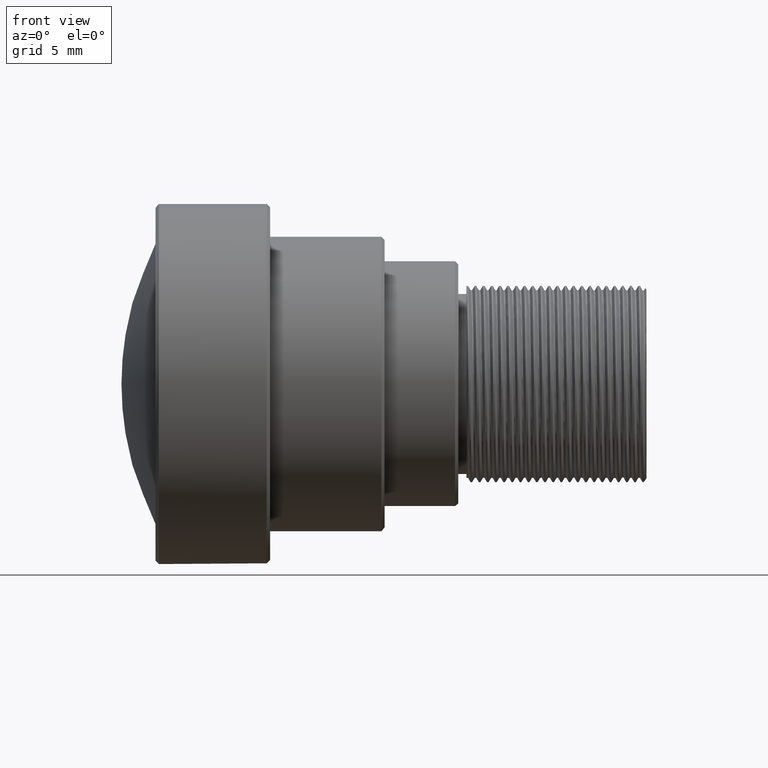
[diagram: clean part render]
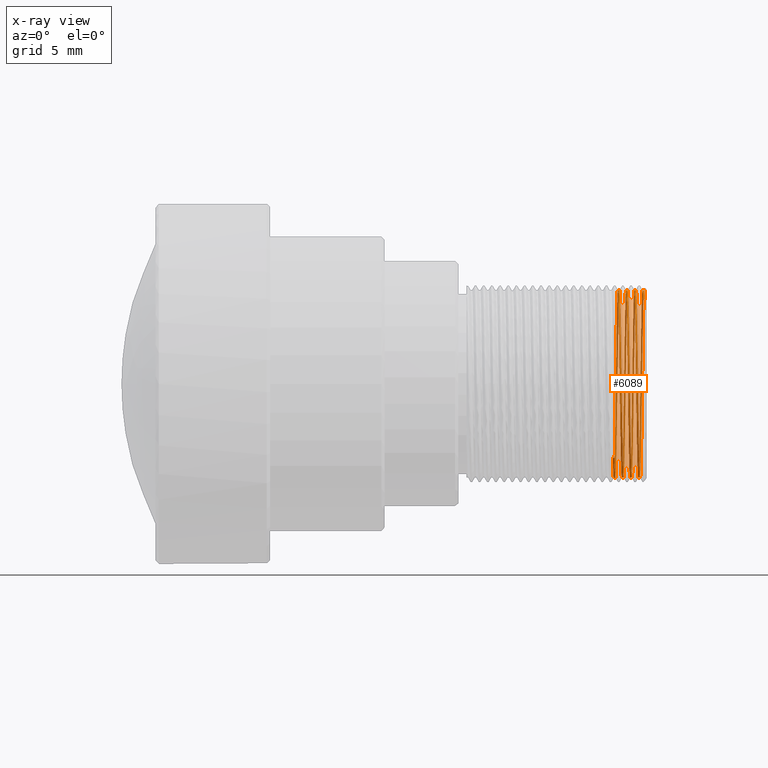
[diagram: x-ray — body ghosted, one internal face saturated and labeled with its STEP entity id]
A machine part, front view, then the same camera in x-ray: the body is ghosted and one INTERNAL B-rep face — a face not visible from any outside direction — is saturated and labeled: STEP entity #6089.
In plain terms, the highlighted face is a freeform B-spline surface patch.
Its self-contained STEP definition (entity closure, byte-faithful):
#68 = CARTESIAN_POINT ( 'NONE',  ( -0.2983402267784215911, 3.262020544383000598, 4.888248852243999742 ) ) ;
#73 = CARTESIAN_POINT ( 'NONE',  ( -1.439047110941999996, -1.611714657622000058, -5.651382333753000253 ) ) ;
#116 = CARTESIAN_POINT ( 'NONE',  ( -0.8618565220464999843, -1.033271532209000032, -5.785161740226000049 ) ) ;
#118 = CARTESIAN_POINT ( 'NONE',  ( -1.648241272114000067, -1.368162165311000100, 5.715232165804000175 ) ) ;
#126 = CARTESIAN_POINT ( 'NONE',  ( -0.2281566989020611669, 4.827691392064699549, 3.351205537272324175 ) ) ;
#172 = CARTESIAN_POINT ( 'NONE',  ( -0.1155641468390612159, -2.504550225789854867, 5.164816565400082382 ) ) ;
#277 = CARTESIAN_POINT ( 'NONE',  ( -1.657619137828000078, -4.900328115913000104, 3.243845060453999896 ) ) ;
#284 = CARTESIAN_POINT ( 'NONE',  ( -0.6825472410416999480, 5.141080065951999956, 2.846935576249999933 ) ) ;
#329 = CARTESIAN_POINT ( 'NONE',  ( -0.3836984393671999949, -2.562606117582999943, -5.288553328250999996 ) ) ;
#368 = CARTESIAN_POINT ( 'NONE',  ( -0.7106808381827000032, -5.451811664174000427, 2.193968094167999983 ) ) ;
#376 = CARTESIAN_POINT ( 'NONE',  ( -0.8712343877592001462, 3.192731779808000159, -4.933782545071999870 ) ) ;
#414 = CARTESIAN_POINT ( 'NONE',  ( -1.328885455985999942, 5.402096088348000258, 2.313677650863000146 ) ) ;
#425 = CARTESIAN_POINT ( 'NONE',  ( -0.2436519042433999971, 4.827590854280000343, 3.351135747645999974 ) ) ;
#465 = CARTESIAN_POINT ( 'NONE',  ( -0.3221773960063000208, 1.241774547182999955, 5.744015480357999692 ) ) ;
#474 = CARTESIAN_POINT ( 'NONE',  ( -0.09422750340688000603, -4.544991466443000228, 3.506117670063999991 ) ) ;
#497 = CARTESIAN_POINT ( 'NONE',  ( -1.105231991299830963, -5.667830485237000282, -1.552882484433999899 ) ) ;
#510 = CARTESIAN_POINT ( 'NONE',  ( -1.812055347776704517, 5.298143479971912484, -2.543002365762993655 ) ) ;
#514 = CARTESIAN_POINT ( 'NONE',  ( -1.129069160527000015, -4.703263492908999588, -3.523500948789000109 ) ) ;
#522 = CARTESIAN_POINT ( 'NONE',  ( -1.140198309267000054, -1.937840424903999992, 5.548019548223000363 ) ) ;
#562 = CARTESIAN_POINT ( 'NONE',  ( -1.632746066772405857, -1.368190658196298815, 5.715351189307716240 ) ) ;
#566 = CARTESIAN_POINT ( 'NONE',  ( -0.8601052390200001341, 3.738591683345999783, 4.534167910992000117 ) ) ;
#574 = CARTESIAN_POINT ( 'NONE',  ( -1.728518046902000060, 5.861503611179000650, -0.4225183499033000056 ) ) ;
#598 = CARTESIAN_POINT ( 'NONE',  ( -1.792584235150981753, 2.900222359739000222, 5.111208925696000271 ) ) ;
#615 = CARTESIAN_POINT ( 'NONE',  ( -1.906076044880999909, 5.607974948636000434, 1.756804884241000231 ) ) ;
#647 = CARTESIAN_POINT ( 'NONE',  ( -0.5075343879504362610, -0.4442821928007000265, -5.859894175982001130 ) ) ;
#661 = CARTESIAN_POINT ( 'NONE',  ( -0.8258543022507996989, 4.779932046290833014, -3.418981504389204229 ) ) ;
#666 = CARTESIAN_POINT ( 'NONE',  ( -1.487687722536999990, 4.410475369757000053, -3.883742194407000081 ) ) ;
#704 = CARTESIAN_POINT ( 'NONE',  ( -1.528701751444000001, -5.795589852374000372, -0.9730799982035001072 ) ) ;
#718 = CARTESIAN_POINT ( 'NONE',  ( -1.786536524211000065, -1.368162165311000100, 5.715232165804000175 ) ) ;
#762 = CARTESIAN_POINT ( 'NONE',  ( -0.3775810997391153556, 1.736003664363371835, -5.614577114086872101 ) ) ;
#802 = CARTESIAN_POINT ( 'NONE',  ( -0.1932600096227999886, -3.012270791096999911, 5.045969634329000364 ) ) ;
#891 = CARTESIAN_POINT ( 'NONE',  ( -0.2231448897903000050, -0.9515451831228000090, 5.799171382721000079 ) ) ;
#899 = CARTESIAN_POINT ( 'NONE',  ( -0.6465450212460295276, -0.3615737958414667053, 5.865701090635244697 ) ) ;
#1007 = CARTESIAN_POINT ( 'NONE',  ( -0.2922925158390000111, -0.9515451831228000090, 5.799171382721000079 ) ) ;
#1016 = CARTESIAN_POINT ( 'NONE',  ( -0.03504150408046999982, -4.106090420761000281, 4.075066488943999587 ) ) ;
#1055 = CARTESIAN_POINT ( 'NONE',  ( -2.066045833448999947, -4.884836783699999962, -3.099115201051999779 ) ) ;
#1103 = CARTESIAN_POINT ( 'NONE',  ( -1.896698179166999898, 5.298033144915001103, -2.542949407152999886 ) ) ;
#1111 = CARTESIAN_POINT ( 'NONE',  ( -0.5032379600370001649, -5.451811664174000427, 2.193968094167999983 ) ) ;
#1137 = LINE ( 'NONE', #1809, #4140 ) ;
#1148 = CARTESIAN_POINT ( 'NONE',  ( -1.956467939501999931, 2.137179271835000005, -5.474323669045999985 ) ) ;
#1156 = CARTESIAN_POINT ( 'NONE',  ( -0.2735367844107000068, 5.720273472215000155, 1.346929209360999913 ) ) ;
#1196 = CARTESIAN_POINT ( 'NONE',  ( -1.777158658497999921, 2.900222359739000222, 5.111208925696000271 ) ) ;
#1205 = CARTESIAN_POINT ( 'NONE',  ( -0.7815797472568001281, 5.826984719887000175, 0.7628862916948000450 ) ) ;
#1227 = CARTESIAN_POINT ( 'NONE',  ( -1.493735433476832686, 0.5734178952258000006, -5.848669792122000111 ) ) ;
#1244 = CARTESIAN_POINT ( 'NONE',  ( -1.398033082033999897, 5.402096088348000258, 2.313677650863000146 ) ) ;
#1255 = CARTESIAN_POINT ( 'NONE',  ( -1.050543668763999960, -5.842393227390999755, 0.6341827783771000204 ) ) ;
#1277 = CARTESIAN_POINT ( 'NONE',  ( -1.882238875652981980, 5.861503611179000650, -0.4225183499033000056 ) ) ;
#1290 = CARTESIAN_POINT ( 'NONE',  ( -1.304012384930405943, 5.527691417188267842, -1.995447942407208686 ) ) ;
#1294 = CARTESIAN_POINT ( 'NONE',  ( -1.965845805216000164, 5.298033144915001103, -2.542949407152999886 ) ) ;
#1302 = CARTESIAN_POINT ( 'NONE',  ( -1.199968069602000309, 2.369706459180000113, 5.377753965845999851 ) ) ;
#1324 = CARTESIAN_POINT ( 'NONE',  ( -1.344311032638999093, 5.402096088348001146, 2.313677650863000146 ) ) ;
#1336 = CARTESIAN_POINT ( 'NONE',  ( -1.946920049568238831, -3.120344233914243759, -4.849277480066022328 ) ) ;
#1340 = CARTESIAN_POINT ( 'NONE',  ( -1.995730685383000136, 3.996102090147000574, -4.308934014416999858 ) ) ;
#1349 = CARTESIAN_POINT ( 'NONE',  ( -0.7516948670893000006, 5.141080065951999956, 2.846935576249999933 ) ) ;
#1388 = CARTESIAN_POINT ( 'NONE',  ( -1.602861186604704224, -3.369110256890126109, 4.815213491787190492 ) ) ;
#1392 = CARTESIAN_POINT ( 'NONE',  ( -1.188838920862000048, -5.842393227390999755, 0.6341827783771000204 ) ) ;
#1423 = CARTESIAN_POINT ( 'NONE',  ( -0.5374192681179214004, -2.562606117582999943, -5.288553328251000885 ) ) ;
#1427 = CARTESIAN_POINT ( 'NONE',  ( -1.409162230773999935, 0.5734178952258000006, -5.848669792122000111 ) ) ;
#1440 = CARTESIAN_POINT ( 'NONE',  ( -1.069299400192000205, -1.033271532209000032, -5.785161740226000049 ) ) ;
#1470 = CARTESIAN_POINT ( 'NONE',  ( -0.6868436689551492558, -4.267162629249999561, 4.040676863518999795 ) ) ;
#1474 = CARTESIAN_POINT ( 'NONE',  ( -0.8507273733072999722, 5.826984719887000175, 0.7628862916948000450 ) ) ;
#1518 = CARTESIAN_POINT ( 'NONE',  ( -0.3282251069458492765, 4.827590854280000343, 3.351135747645999530 ) ) ;
#1522 = CARTESIAN_POINT ( 'NONE',  ( -1.917205193620999948, -0.01963370577633000158, -5.876676984676000082 ) ) ;
#1530 = CARTESIAN_POINT ( 'NONE',  ( -0.1231768947958366694, -2.007163578628847311, 5.405861067637359518 ) ) ;
#1566 = CARTESIAN_POINT ( 'NONE',  ( -0.7466134292900769021, -0.3615662659839999904, 5.865578936060000359 ) ) ;
#1568 = CARTESIAN_POINT ( 'NONE',  ( -0.9515111625489001135, -5.667830485237000282, -1.552882484433999899 ) ) ;
#1570 = CARTESIAN_POINT ( 'NONE',  ( -0.5219936914652000270, -2.562606117582999943, -5.288553328250999996 ) ) ;
#1613 = CARTESIAN_POINT ( 'NONE',  ( -0.4024541707952000169, 5.100403685489999894, -2.919182877256000452 ) ) ;
#1665 = CARTESIAN_POINT ( 'NONE',  ( -0.6166601410785995663, -2.487791684702663098, 5.324291260632217693 ) ) ;
#1710 = VERTEX_POINT ( 'NONE', #4530 ) ;
#1728 = CARTESIAN_POINT ( 'NONE',  ( -1.687504017995000050, -3.369040094394000207, 4.815113213857999952 ) ) ;
#1735 = CARTESIAN_POINT ( 'NONE',  ( -0.1147345178602000165, 1.241774547182999955, 5.744015480357999692 ) ) ;
#1774 = CARTESIAN_POINT ( 'NONE',  ( -2.016237699837000186, -2.173703332975999825, -5.459930474090000097 ) ) ;
#1782 = CARTESIAN_POINT ( 'NONE',  ( -1.220475084055999915, 5.874222156973000430, 0.1710569214598000043 ) ) ;
#1809 = CARTESIAN_POINT ( 'NONE',  ( -2.004651645849476083, -3.554418484606526540, -4.507115719039492596 ) ) ;
#1822 = CARTESIAN_POINT ( 'NONE',  ( -0.6807959580153000179, -5.876565992107000369, 0.04145552146432000123 ) ) ;
#1831 = CARTESIAN_POINT ( 'NONE',  ( -0.5928926005393000409, -0.3615662659839999904, 5.865578936060000359 ) ) ;
#1853 = CARTESIAN_POINT ( 'NONE',  ( -1.673044714480981687, -4.900328115913000104, 3.243845060453999896 ) ) ;
#1876 = CARTESIAN_POINT ( 'NONE',  ( -1.429669245227999985, -5.034778505611000377, -3.030965492922999882 ) ) ;
#1900 = CARTESIAN_POINT ( 'NONE',  ( -1.224771511969832583, -1.937840424903166436, 5.548019548223000363 ) ) ;
#1916 = CARTESIAN_POINT ( 'NONE',  ( -1.478309856824000068, 0.5734178952258000006, -5.848669792122000111 ) ) ;
#1925 = CARTESIAN_POINT ( 'NONE',  ( -0.6321553464194999972, -2.487739875867999828, 5.324180381040999777 ) ) ;
#1965 = CARTESIAN_POINT ( 'NONE',  ( -2.025615565550999975, 2.137179271835000005, -5.474323669045999985 ) ) ;
#1975 = CARTESIAN_POINT ( 'NONE',  ( -0.8413495075917000188, 4.779832503106001163, -3.418910303312999943 ) ) ;
#1998 = CARTESIAN_POINT ( 'NONE',  ( -1.822469115318388289, 4.572784924041999766, 3.691257842669000588 ) ) ;
#2012 = CARTESIAN_POINT ( 'NONE',  ( -0.9198749993549000248, 5.826984719887000175, 0.7628862916948000450 ) ) ;
#2021 = CARTESIAN_POINT ( 'NONE',  ( -1.937712208073999909, -5.191436729850999576, -2.449243398750999834 ) ) ;
#2053 = VERTEX_POINT ( 'NONE', #3083 ) ;
#2054 = CARTESIAN_POINT ( 'NONE',  ( -1.752285587442357961, 5.608091738436675300, 1.756841470868985011 ) ) ;
#2066 = CARTESIAN_POINT ( 'NONE',  ( -1.259737829936999898, 5.402096088348000258, 2.313677650863000146 ) ) ;
#2087 = ORIENTED_EDGE ( 'NONE', *, *, #8788, .T. ) ;
#2107 = CARTESIAN_POINT ( 'NONE',  ( -1.517572602703999962, 2.678625232324999939, -5.230746914600000075 ) ) ;
#2145 = CARTESIAN_POINT ( 'NONE',  ( -0.6415332121350000305, -5.451811664174000427, 2.193968094167999983 ) ) ;
#2157 = CARTESIAN_POINT ( 'NONE',  ( -0.9497598795224001522, 5.700701587612000409, -1.427497050381999921 ) ) ;
#2190 = CARTESIAN_POINT ( 'NONE',  ( -0.5971890284527657800, -5.482221703330999674, -2.116835283003000168 ) ) ;
#2285 = CARTESIAN_POINT ( 'NONE',  ( -0.8063831896249785691, 3.738591683345999783, 4.534167910992000117 ) ) ;
#2287 = CARTESIAN_POINT ( 'NONE',  ( -0.3538135591996999785, -0.4442821928007000265, -5.859894175982001130 ) ) ;
#2289 = CARTESIAN_POINT ( 'NONE',  ( -1.588471511779000034, -4.900328115913000104, 3.243845060453999896 ) ) ;
#2298 = CARTESIAN_POINT ( 'NONE',  ( -0.3178113394042451634, 5.100509904782651205, -2.919243671176736665 ) ) ;
#2312 = EDGE_CURVE ( 'NONE', #2053, #8424, #6109, .T. ) ;
#2336 = CARTESIAN_POINT ( 'NONE',  ( -1.887320313453000109, 2.137179271835000005, -5.474323669045999985 ) ) ;
#2344 = CARTESIAN_POINT ( 'NONE',  ( -0.2879264592368405706, 5.815763061861788152, -0.8450353973787697592 ) ) ;
#2454 = CARTESIAN_POINT ( 'NONE',  ( -0.5331228402044000392, -4.267162629249999561, 4.040676863518999795 ) ) ;
#2466 = CARTESIAN_POINT ( 'NONE',  ( -0.9104971336421999739, 4.779832503106001163, -3.418910303312999943 ) ) ;
#2492 = CARTESIAN_POINT ( 'NONE',  ( -0.6210261976804000161, -4.323744038073000340, -3.980073355245999700 ) ) ;
#2499 = CARTESIAN_POINT ( 'NONE',  ( -1.190590203888999943, 5.402096088348000258, 2.313677650863000146 ) ) ;
#2539 = CARTESIAN_POINT ( 'NONE',  ( -0.6509110778478000015, -5.482221703330999674, -2.116835283003000168 ) ) ;
#2562 = CARTESIAN_POINT ( 'NONE',  ( -0.9702668939771000867, 1.160615687351000069, -5.760964992614000302 ) ) ;
#2572 = CARTESIAN_POINT ( 'NONE',  ( -1.075347111131854438, -4.703263492908999588, -3.523500948789000109 ) ) ;
#2599 = CARTESIAN_POINT ( 'NONE',  ( -1.519323885729999990, -4.900328115913000104, 3.243845060453999896 ) ) ;
#2622 = CARTESIAN_POINT ( 'NONE',  ( -1.643159834313832723, -5.748589351629999733, 1.220437170107000036 ) ) ;
#2638 = CARTESIAN_POINT ( 'NONE',  ( -0.2325227555042000127, -4.544991466443000228, 3.506117670063999991 ) ) ;
#2647 = CARTESIAN_POINT ( 'NONE',  ( -1.638863406400000278, 2.900222359739000222, 5.111208925696000271 ) ) ;
#2670 = CARTESIAN_POINT ( 'NONE',  ( -0.8960378301273769219, 5.700701587612000409, -1.427497050381999921 ) ) ;
#2682 = CARTESIAN_POINT ( 'NONE',  ( -1.954617906571949559, -3.554455768640075952, -4.507162323965716588 ) ) ;
#2686 = CARTESIAN_POINT ( 'NONE',  ( -1.607227243207000056, -3.572200154967000163, -4.666383232514999868 ) ) ;
#2695 = CARTESIAN_POINT ( 'NONE',  ( -1.877942447739000320, -2.173703332975999825, -5.459930474090000097 ) ) ;
#2730 = CARTESIAN_POINT ( 'NONE',  ( -1.543091426270360333, -5.748709069818732864, 1.220462586521134707 ) ) ;
#2734 = CARTESIAN_POINT ( 'NONE',  ( -1.547457482872000023, 0.5734178952258000006, -5.848669792122000111 ) ) ;
#2742 = CARTESIAN_POINT ( 'NONE',  ( -1.788287807237000093, 3.996102090147000574, -4.308934014416999858 ) ) ;
#2767 = CARTESIAN_POINT ( 'NONE',  ( -1.523620313643981650, -1.611714657622000058, -5.651382333753001141 ) ) ;
#2782 = CARTESIAN_POINT ( 'NONE',  ( -1.094818223758405873, -3.837766194625170435, 4.450700566192406171 ) ) ;
#2795 = CARTESIAN_POINT ( 'NONE',  ( -0.3631914249127999872, 3.674251313810999786, -4.586460912900999887 ) ) ;
#2829 = CARTESIAN_POINT ( 'NONE',  ( -1.274127504762752272, 5.874344491548375125, 0.1710604838337251021 ) ) ;
#2833 = CARTESIAN_POINT ( 'NONE',  ( -1.726766763876000033, -4.900328115913000104, 3.243845060453999896 ) ) ;
#2870 = CARTESIAN_POINT ( 'NONE',  ( -0.4921088112977000106, -0.4442821928007000265, -5.859894175982001130 ) ) ;
#2892 = CARTESIAN_POINT ( 'NONE',  ( -1.030036654312000310, -3.083137348138000000, -5.003000151145999830 ) ) ;
#2912 = CARTESIAN_POINT ( 'NONE',  ( -0.1155641468390612159, -2.504550225789854867, 5.164816565400082382 ) ) ;
#2967 = CARTESIAN_POINT ( 'NONE',  ( -0.7423170013765999498, 5.700701587612000409, -1.427497050381999921 ) ) ;
#2969 = CARTESIAN_POINT ( 'NONE',  ( -1.827550553118000076, 5.298033144915001103, -2.542949407152999886 ) ) ;
#2978 = CARTESIAN_POINT ( 'NONE',  ( -0.7361996617483995697, 5.141187132357271317, 2.846994865573047040 ) ) ;
#3013 = CARTESIAN_POINT ( 'NONE',  ( -0.7167285491225933169, -2.487739875867999828, 5.324180381040999777 ) ) ;
#3017 = CARTESIAN_POINT ( 'NONE',  ( -1.797665672951000104, 5.861503611179000650, -0.4225183499033000056 ) ) ;
#3025 = CARTESIAN_POINT ( 'NONE',  ( -0.5867752609111295259, -4.267251495744706524, 4.040761013297267112 ) ) ;
#3058 = CARTESIAN_POINT ( 'NONE',  ( -1.071050683219000099, -1.937840424903999992, 5.548019548223000363 ) ) ;
#3061 = CARTESIAN_POINT ( 'NONE',  ( -1.737895912616000071, 4.572784924041999766, 3.691257842669000588 ) ) ;
#3070 = CARTESIAN_POINT ( 'NONE',  ( -0.5568903807436950126, -5.451925201770303708, 2.194013785009988560 ) ) ;
#3083 = CARTESIAN_POINT ( 'NONE',  ( -1.954617906571949559, -3.554455768640075952, -4.507162323965716588 ) ) ;
#3217 = CARTESIAN_POINT ( 'NONE',  ( -1.807043538664999893, 4.572784924041999766, 3.691257842669000588 ) ) ;
#3264 = CARTESIAN_POINT ( 'NONE',  ( -1.836928418832000087, 5.607974948636000434, 1.756804884241000231 ) ) ;
#3272 = CARTESIAN_POINT ( 'NONE',  ( -0.3239286790323000487, 1.735967511686999920, -5.614460189226000431 ) ) ;
#3318 = CARTESIAN_POINT ( 'NONE',  ( -0.1838821439088000054, 1.241774547182999955, 5.744015480357999692 ) ) ;
#3341 = CARTESIAN_POINT ( 'NONE',  ( -1.971893516155388548, 2.137179271835000005, -5.474323669046000873 ) ) ;
#3359 = CARTESIAN_POINT ( 'NONE',  ( -1.358770336154000002, 5.874222156973000430, 0.1710569214597000287 ) ) ;
#3370 = CARTESIAN_POINT ( 'NONE',  ( -0.4827309455823999840, -4.323744038073000340, -3.980073355245999700 ) ) ;
#3392 = CARTESIAN_POINT ( 'NONE',  ( -0.9558075904621714525, 3.192731779808000159, -4.933782545071999870 ) ) ;
#3407 = CARTESIAN_POINT ( 'NONE',  ( -0.3520622761737000062, 3.262020544383000153, 4.888248852243999742 ) ) ;
#3417 = CARTESIAN_POINT ( 'NONE',  ( -1.818172687404000065, 2.137179271835000005, -5.474323669045999985 ) ) ;
#3441 = CARTESIAN_POINT ( 'NONE',  ( -0.8661529499598935589, 5.826984719887000175, 0.7628862916948001560 ) ) ;
#3454 = CARTESIAN_POINT ( 'NONE',  ( -1.423551905600405787, -1.611748222649346252, -5.651500027541350057 ) ) ;
#3458 = CARTESIAN_POINT ( 'NONE',  ( -0.8003354786851000213, -0.3615662659839999904, 5.865578936060000359 ) ) ;
#3466 = CARTESIAN_POINT ( 'NONE',  ( -0.5723855860845999954, -5.451811664174000427, 2.193968094167999983 ) ) ;
#3489 = CARTESIAN_POINT ( 'NONE',  ( -1.613274954146405982, -5.795589852374000372, -0.9730799982035001072 ) ) ;
#3501 = CARTESIAN_POINT ( 'NONE',  ( -1.483321665935405598, -5.034883358214850446, -3.031028614791420051 ) ) ;
#3505 = CARTESIAN_POINT ( 'NONE',  ( -2.055500445718000169, -0.01963370577633000158, -5.876676984676000082 ) ) ;
#3513 = CARTESIAN_POINT ( 'NONE',  ( -0.1241123835741999998, -3.012270791096999911, 5.045969634329000364 ) ) ;
#3589 = CARTESIAN_POINT ( 'NONE',  ( -0.4776495077829937541, 1.735967511687000142, -5.614460189226000431 ) ) ;
#3602 = CARTESIAN_POINT ( 'NONE',  ( -1.244242624595405688, 5.402208590584578474, 2.313725834735972597 ) ) ;
#3645 = CARTESIAN_POINT ( 'NONE',  ( -0.5518785716326000124, -4.323744038073000340, -3.980073355245999700 ) ) ;
#3653 = CARTESIAN_POINT ( 'NONE',  ( -0.7063147815809994734, 3.738669541998962398, 4.534262338048189456 ) ) ;
#3658 = CARTESIAN_POINT ( 'NONE',  ( -1.816421404379000126, 0.8234155258886000084, 5.818739837136000403 ) ) ;
#3699 = CARTESIAN_POINT ( 'NONE',  ( -1.289622710104000092, 5.874222156973000430, 0.1710569214598000043 ) ) ;
#3707 = CARTESIAN_POINT ( 'NONE',  ( -0.4971206204088248759, -5.482335874236378359, -2.116879367503114562 ) ) ;
#3741 = CARTESIAN_POINT ( 'NONE',  ( -0.3879948672807215226, 5.815641947257999433, -0.8450177993222000028 ) ) ;
#3743 = CARTESIAN_POINT ( 'NONE',  ( -0.05496475752541000320, -3.012270791096999911, 5.045969634329000364 ) ) ;
#3745 = CARTESIAN_POINT ( 'NONE',  ( -0.3127995302927999988, 4.827590854280000343, 3.351135747645999974 ) ) ;
#3786 = CARTESIAN_POINT ( 'NONE',  ( -0.1745042781951000044, 4.827590854280000343, 3.351135747645999974 ) ) ;
#3789 = CARTESIAN_POINT ( 'NONE',  ( -1.558586631611000195, -5.748589351629999733, 1.220437170107000036 ) ) ;
#3797 = CARTESIAN_POINT ( 'NONE',  ( -0.3476962195716454262, 3.674327832533204496, -4.586556428994660095 ) ) ;
#3946 = CARTESIAN_POINT ( 'NONE',  ( -1.926583059334999959, 3.996102090147000574, -4.308934014416999858 ) ) ;
#4032 = CARTESIAN_POINT ( 'NONE',  ( -0.1155641468390612159, -2.504550225789854867, 5.164816565400082382 ) ) ;
#4041 = CARTESIAN_POINT ( 'NONE',  ( -2.046122580004000380, -4.024818847873000038, -4.282104402190999970 ) ) ;
#4049 = CARTESIAN_POINT ( 'NONE',  ( -0.1446193980276999913, 3.262020544383000153, 4.888248852243999742 ) ) ;
#4070 = CARTESIAN_POINT ( 'NONE',  ( -1.762699354983406019, 0.8234155258886000084, 5.818739837136000403 ) ) ;
#4088 = CARTESIAN_POINT ( 'NONE',  ( -1.986352819669000125, -0.01963370577633000158, -5.876676984676000082 ) ) ;
#4096 = CARTESIAN_POINT ( 'NONE',  ( -0.3333065447454999775, 5.100403685489999894, -2.919182877256000452 ) ) ;
#4120 = CARTESIAN_POINT ( 'NONE',  ( -1.852353995485555016, 5.607974948636001322, 1.756804884241000231 ) ) ;
#4136 = CARTESIAN_POINT ( 'NONE',  ( -2.076007460171000130, -5.191436729850999576, -2.449243398750999834 ) ) ;
#4140 = VECTOR ( 'NONE', #7014, 1000.000000000000000 ) ;
#4147 = CARTESIAN_POINT ( 'NONE',  ( -1.459554125396000046, -5.795589852374000372, -0.9730799982035001072 ) ) ;
#4170 = CARTESIAN_POINT ( 'NONE',  ( -0.8362680697923935424, 5.141080065951999956, 2.846935576249999933 ) ) ;
#4186 = CARTESIAN_POINT ( 'NONE',  ( -0.7704505985176001159, -2.487739875867999828, 5.324180381040999777 ) ) ;
#4195 = CARTESIAN_POINT ( 'NONE',  ( -1.080428548932000243, -5.202620485648999704, 2.732853179766999929 ) ) ;
#4219 = CARTESIAN_POINT ( 'NONE',  ( -1.732814474815981942, -1.368162165311000100, 5.715232165804000175 ) ) ;
#4231 = CARTESIAN_POINT ( 'NONE',  ( -1.214357744428405717, 4.177091851890284424, 4.133895082774757590 ) ) ;
#4235 = CARTESIAN_POINT ( 'NONE',  ( -1.666997003542000089, -5.795589852374000372, -0.9730799982035001072 ) ) ;
#4243 = CARTESIAN_POINT ( 'NONE',  ( -1.229852949769000059, 4.177004862990999712, 4.133808993458999659 ) ) ;
#4267 = CARTESIAN_POINT ( 'NONE',  ( -1.284541272304832615, 2.369706459180000113, 5.377753965846000739 ) ) ;
#4279 = CARTESIAN_POINT ( 'NONE',  ( -0.8856240625857948467, 1.160639857943366327, -5.761084968534465389 ) ) ;
#4283 = CARTESIAN_POINT ( 'NONE',  ( -2.135193459498000212, -4.884836783699999962, -3.099115201051999779 ) ) ;
#4293 = CARTESIAN_POINT ( 'NONE',  ( -0.9608890282616001643, -3.083137348138000000, -5.003000151145999830 ) ) ;
#4305 = EDGE_CURVE ( 'NONE', #1710, #4544, #7146, .T. ) ;
#4317 = CARTESIAN_POINT ( 'NONE',  ( -0.6569587887876509047, -5.451811664174000427, 2.193968094167999983 ) ) ;
#4336 = CARTESIAN_POINT ( 'NONE',  ( -1.158954040695000076, -5.667830485237000282, -1.552882484433999899 ) ) ;
#4373 = CARTESIAN_POINT ( 'NONE',  ( -0.1733367561778000054, -4.106090420761000281, 4.075066488943999587 ) ) ;
#4387 = CARTESIAN_POINT ( 'NONE',  ( -1.039414520025000011, 1.160615687351000069, -5.760964992614000302 ) ) ;
#4422 = CARTESIAN_POINT ( 'NONE',  ( -0.6714180923025000469, -4.267162629249999561, 4.040676863518999795 ) ) ;
#4430 = CARTESIAN_POINT ( 'NONE',  ( -0.1683869385672555063, 1.241800407962403652, 5.744135103292687283 ) ) ;
#4466 = CARTESIAN_POINT ( 'NONE',  ( -0.2940437988647999767, 3.674251313810999786, -4.586460912900999887 ) ) ;
#4468 = CARTESIAN_POINT ( 'NONE',  ( -2.006859834122999953, -5.191436729850999576, -2.449243398750999834 ) ) ;
#4506 = CARTESIAN_POINT ( 'NONE',  ( -0.1822497809546715919, -2.504546184114254892, 5.164806993506189770 ) ) ;
#4512 = CARTESIAN_POINT ( 'NONE',  ( -0.5673041482853213857, -4.323744038073000340, -3.980073355245999700 ) ) ;
#4514 = CARTESIAN_POINT ( 'NONE',  ( -1.011280922884000066, -5.202620485648999704, 2.732853179766999929 ) ) ;
#4523 = CARTESIAN_POINT ( 'NONE',  ( -0.4074659799065201149, -0.4442914452722918628, -5.860016212168213556 ) ) ;
#4530 = CARTESIAN_POINT ( 'NONE',  ( -2.054686453685152792, -3.554455090719275567, -4.507162970521020995 ) ) ;
#4544 = VERTEX_POINT ( 'NONE', #9137 ) ;
#4610 = CARTESIAN_POINT ( 'NONE',  ( -0.1982718187346592109, 3.262088478125968471, 4.888350653270934210 ) ) ;
#4671 = CARTESIAN_POINT ( 'NONE',  ( -0.5014866770107000438, 3.674251313810999786, -4.586460912900999887 ) ) ;
#4717 = CARTESIAN_POINT ( 'NONE',  ( -1.269115695652000220, 2.369706459180000113, 5.377753965845999851 ) ) ;
#4726 = CARTESIAN_POINT ( 'NONE',  ( -1.250359964223000109, 5.527576301743000187, -1.995406386745000038 ) ) ;
#4770 = CARTESIAN_POINT ( 'NONE',  ( -0.4434681997020999966, -5.482221703330999674, -2.116835283003000168 ) ) ;
#4771 = ORIENTED_EDGE ( 'NONE', *, *, #2312, .F. ) ;
#4793 = CARTESIAN_POINT ( 'NONE',  ( -1.254656392136832332, 0.2321091554120000011, 5.872126681179999252 ) ) ;
#4810 = CARTESIAN_POINT ( 'NONE',  ( -1.149576174982000154, -5.202620485648999704, 2.732853179766999929 ) ) ;
#4820 = CARTESIAN_POINT ( 'NONE',  ( -0.2137670240760999874, 3.262020544383000153, 4.888248852243999742 ) ) ;
#4842 = CARTESIAN_POINT ( 'NONE',  ( -1.194886631801832522, -3.837686272261000120, 4.450607879328999594 ) ) ;
#4858 = CARTESIAN_POINT ( 'NONE',  ( -1.119691294814000093, -5.842393227390999755, 0.6341827783771000204 ) ) ;
#4867 = CARTESIAN_POINT ( 'NONE',  ( -0.6919251067543999989, 1.815003855862000082, 5.589410292961000337 ) ) ;
#4918 = CARTESIAN_POINT ( 'NONE',  ( -1.608978526233000084, 0.8234155258886000084, 5.818739837136000403 ) ) ;
#4946 = B_SPLINE_CURVE_WITH_KNOTS ( 'NONE', 3,
 ( #7303, #4506, #5270, #2912 ),
 .UNSPECIFIED., .F., .F.,
 ( 4, 4 ),
 ( 0.000000000000000000, 1.000000000000000000 ),
 .UNSPECIFIED. ) ;
#4953 = CARTESIAN_POINT ( 'NONE',  ( -1.662630946939704479, 0.8234326740634840824, 5.818861016255616470 ) ) ;
#4957 = CARTESIAN_POINT ( 'NONE',  ( -1.248608681197000081, -3.837686272261000120, 4.450607879328999594 ) ) ;
#4967 = CARTESIAN_POINT ( 'NONE',  ( -1.020658788596999988, -5.667830485237000282, -1.552882484433999899 ) ) ;
#4989 = CARTESIAN_POINT ( 'NONE',  ( -1.702929594648405764, -3.369040094394000207, 4.815113213857999952 ) ) ;
#5002 = CARTESIAN_POINT ( 'NONE',  ( -1.005163583255494153, -5.667948521569580400, -1.552914824242870528 ) ) ;
#5015 = CARTESIAN_POINT ( 'NONE',  ( -1.698633166735000088, 5.607974948636000434, 1.756804884241000231 ) ) ;
#5054 = CARTESIAN_POINT ( 'NONE',  ( -1.637112123374000028, -5.034778505611000377, -3.030965492922999882 ) ) ;
#5091 = CARTESIAN_POINT ( 'NONE',  ( -0.7610727328048999540, 1.815003855862000082, 5.589410292961000337 ) ) ;
#5098 = CARTESIAN_POINT ( 'NONE',  ( -1.722400707274405640, 4.572880155323462148, 3.691334715564198010 ) ) ;
#5103 = CARTESIAN_POINT ( 'NONE',  ( -0.9796447596898000265, 4.779832503106001163, -3.418910303312999943 ) ) ;
#5135 = CARTESIAN_POINT ( 'NONE',  ( -0.4477646276155493044, 3.674251313810999786, -4.586460912900999887 ) ) ;
#5139 = CARTESIAN_POINT ( 'NONE',  ( -0.7311878526374999687, -0.3615662659839999904, 5.865578936060000359 ) ) ;
#5185 = CARTESIAN_POINT ( 'NONE',  ( -0.2156116919268833143, -2.504546829526817397, 5.164808075498646289 ) ) ;
#5187 = CARTESIAN_POINT ( 'NONE',  ( -0.9813960427162999878, -5.842393227390999755, 0.6341827783771000204 ) ) ;
#5189 = CARTESIAN_POINT ( 'NONE',  ( -1.319507590272000153, 5.527576301743000187, -1.995406386745000038 ) ) ;
#5235 = CARTESIAN_POINT ( 'NONE',  ( -0.7722018815440999662, 4.779832503106001163, -3.418910303312999943 ) ) ;
#5237 = CARTESIAN_POINT ( 'NONE',  ( -1.618356391946000006, -3.369040094394000207, 4.815113213857999952 ) ) ;
#5270 = CARTESIAN_POINT ( 'NONE',  ( -0.1489168545029497803, -2.504546184114254892, 5.164806993506189770 ) ) ;
#5391 = CARTESIAN_POINT ( 'NONE',  ( -0.5911413175130000308, -2.562606117582999943, -5.288553328250999996 ) ) ;
#5399 = CARTESIAN_POINT ( 'NONE',  ( -1.100935563386000071, 0.2321091554120000011, 5.872126681180000141 ) ) ;
#5438 = CARTESIAN_POINT ( 'NONE',  ( -1.388655216321000196, 5.527576301743000187, -1.995406386745000038 ) ) ;
#5484 = CARTESIAN_POINT ( 'NONE',  ( -1.448424976656000007, 2.678625232324999939, -5.230746914600000075 ) ) ;
#5493 = CARTESIAN_POINT ( 'NONE',  ( -0.02507987735800000159, -4.544991466443000228, 3.506117670063999991 ) ) ;
#5506 = CARTESIAN_POINT ( 'NONE',  ( -1.000151774144999894, -1.033271532209000032, -5.785161740226000049 ) ) ;
#5517 = CARTESIAN_POINT ( 'NONE',  ( -1.045462230964772976, -3.083137348138000000, -5.003000151145999830 ) ) ;
#5535 = CARTESIAN_POINT ( 'NONE',  ( -0.4417169166759000731, 5.815641947258000322, -0.8450177993222000028 ) ) ;
#5543 = CARTESIAN_POINT ( 'NONE',  ( -1.369899484892999952, -1.611714657622000058, -5.651382333753000253 ) ) ;
#5581 = CARTESIAN_POINT ( 'NONE',  ( -1.089806414646999899, -5.667830485237000282, -1.552882484433999899 ) ) ;
#5591 = CARTESIAN_POINT ( 'NONE',  ( -1.848057567571999904, -0.01963370577633000158, -5.876676984676000082 ) ) ;
#5614 = CARTESIAN_POINT ( 'NONE',  ( -1.912123755820406057, 5.298033144915001103, -2.542949407152999886 ) ) ;
#5627 = CARTESIAN_POINT ( 'NONE',  ( -0.9752787030883253161, -4.703361441493398409, -3.523574328035373959 ) ) ;
#5631 = CARTESIAN_POINT ( 'NONE',  ( -1.846306284546000098, 2.900222359739000222, 5.111208925696000271 ) ) ;
#5640 = CARTESIAN_POINT ( 'NONE',  ( -0.5126158257498000248, -5.482221703330999674, -2.116835283003000168 ) ) ;
#5679 = CARTESIAN_POINT ( 'NONE',  ( -1.756651644044000093, -3.369040094394000207, 4.815113213857999952 ) ) ;
#5687 = CARTESIAN_POINT ( 'NONE',  ( -1.340014604725999980, 0.5734178952258000006, -5.848669792122000111 ) ) ;
#5710 = CARTESIAN_POINT ( 'NONE',  ( -1.404080792973981584, 5.527576301743000187, -1.995406386745000038 ) ) ;
#5723 = CARTESIAN_POINT ( 'NONE',  ( -1.035048463423320797, -5.842514899107793980, 0.6341959856543532004 ) ) ;
#5728 = CARTESIAN_POINT ( 'NONE',  ( -1.577342363038999995, -1.611714657622000058, -5.651382333753000253 ) ) ;
#5736 = CARTESIAN_POINT ( 'NONE',  ( -0.3930763050801999725, 1.735967511686999920, -5.614460189226000431 ) ) ;
#5770 = CARTESIAN_POINT ( 'NONE',  ( -1.572976306437405825, -4.900430168498827399, 3.243912615680158762 ) ) ;
#5813 = CARTESIAN_POINT ( 'NONE',  ( -0.6116483319676000452, -5.876565992107000369, 0.04145552146432000123 ) ) ;
#5825 = CARTESIAN_POINT ( 'NONE',  ( -0.8302203588525000066, 1.815003855862000082, 5.589410292961000337 ) ) ;
#5835 = CARTESIAN_POINT ( 'NONE',  ( -1.059921534479000060, -4.703263492908999588, -3.523500948789000109 ) ) ;
#5867 = CARTESIAN_POINT ( 'NONE',  ( -0.7013029724699999523, -2.487739875867999828, 5.324180381040999777 ) ) ;
#5875 = CARTESIAN_POINT ( 'NONE',  ( -0.7660845419158995862, 5.827106070711566943, 0.7629021793081642855 ) ) ;
#5913 = CARTESIAN_POINT ( 'NONE',  ( -0.9216262823813999860, -4.703263492908999588, -3.523500948789000109 ) ) ;
#5916 = CARTESIAN_POINT ( 'NONE',  ( -1.349392470438999903, 4.410475369757000053, -3.883742194407000081 ) ) ;
#5961 = CARTESIAN_POINT ( 'NONE',  ( -0.2043891583625000175, 5.720273472215000155, 1.346929209360999913 ) ) ;
#5963 = CARTESIAN_POINT ( 'NONE',  ( -0.1633751294554000033, -4.544991466443000228, 3.506117670063999991 ) ) ;
#5971 = CARTESIAN_POINT ( 'NONE',  ( -0.4672357402413901961, -4.323834082912669352, -3.980156242915050324 ) ) ;
#6006 = CARTESIAN_POINT ( 'NONE',  ( -0.7124321212091999644, 5.826984719887000175, 0.7628862916948000450 ) ) ;
#6007 = CARTESIAN_POINT ( 'NONE',  ( -1.767780792783999910, 5.607974948636000434, 1.756804884241000231 ) ) ;
#6089 = ADVANCED_FACE ( 'NONE', ( #7455 ), #6203, .F. ) ;
#6109 = B_SPLINE_CURVE_WITH_KNOTS ( 'NONE', 3,
 ( #2682, #1336, #8614, #8566, #7321, #9484, #510, #6496, #2054, #5098, #8664, #4953, #562, #1388, #5770, #2730, #6351, #3501, #9286, #3454, #6401, #8711, #7901, #1290, #2829, #3602, #4231, #9338, #7172, #9433, #2782, #6448, #5723, #5002, #5627, #7950, #7272, #4279, #7223, #661, #7464, #5875, #2978, #3653, #8276, #899, #1665, #3025, #3070, #8909, #3707, #5971, #6595, #4523, #762, #3797, #2298, #2344, #8143, #126, #4610, #4430, #6778, #1530, #172 ),
 .UNSPECIFIED., .F., .F.,
 ( 4, 1, 1, 1, 1, 1, 1, 1, 1, 1, 1, 1, 1, 1, 1, 1, 1, 1, 1, 1, 1, 1, 1, 1, 1, 1, 1, 1, 1, 1, 1, 1, 1, 1, 1, 1, 1, 1, 1, 1, 1, 1, 1, 1, 1, 1, 1, 1, 1, 1, 1, 1, 1, 1, 1, 1, 1, 1, 1, 1, 1, 1, 4 ),
 ( 0.000000000000000000, 0.01249968331448670679, 0.02874969410880552287, 0.04499970490312422272, 0.06124971569744293298, 0.07749972649176163630, 0.09374973728608033963, 0.1099997480803990429, 0.1262497588747177324, 0.1424997696690364357, 0.1587497804633551668, 0.1749997912576739811, 0.1912498020519926845, 0.2074998128463113878, 0.2237498236406300911, 0.2399998344349487944, 0.2562498452292674700, 0.2724998560235861733, 0.2887498668179048766, 0.3049998776122236910, 0.3212498884065423943, 0.3374998992008610976, 0.3537499099951798009, 0.3699999207894985043, 0.3862499315838172076, 0.4024999423781359109, 0.4187499531724546142, 0.4349999639667734286, 0.4512499747610921319, 0.4674999855554108352, 0.4837499963497295385, 0.5000000071440482419, 0.5162500179383670007, 0.5325000287326856485, 0.5487500395270044073, 0.5650000503213231662, 0.5812500611156418140, 0.5975000719099605728, 0.6137500827042793317, 0.6300000934985979795, 0.6462501042929167383, 0.6625001150872353861, 0.6787501258815542560, 0.6950001366758727928, 0.7112501474701916626, 0.7275001582645101994, 0.7437501690588290693, 0.7600001798531477171, 0.7762501906474664759, 0.7925002014417851237, 0.8087502122361038825, 0.8250002230304226414, 0.8412502338247412892, 0.8575002446190600480, 0.8737502554133788069, 0.8900002662076974547, 0.9062502770020162135, 0.9225002877963348613, 0.9387502985906536201, 0.9550003093849722680, 0.9712503201792910268, 0.9875003309736097856, 1.000000000000000000 ),
 .UNSPECIFIED. ) ;
#6166 = CARTESIAN_POINT ( 'NONE',  ( -1.866813299000000148, 5.861503611179000650, -0.4225183499033000056 ) ) ;
#6173 = CARTESIAN_POINT ( 'NONE',  ( -1.041165803051000038, -3.837686272261000120, 4.450607879328999594 ) ) ;
#6203 = B_SPLINE_SURFACE_WITH_KNOTS ( 'NONE', 3, 3, ( 
 ( #5493, #1016, #3743, #6682, #1735, #4049, #3786, #5961, #8899, #7619, #4466, #3272, #2287, #329, #9155, #4770, #8437, #1111, #2454, #6221, #1831, #6988, #7411, #284, #6006, #2967, #5235, #6892, #8183, #116, #6725, #5913, #1568, #5187, #4514, #6173, #3058, #5399, #8343, #9107, #2499, #1782, #4726, #7666, #9350, #5687, #5543, #9251, #1876, #4147, #9299, #2599, #7765, #6267, #4918, #2647, #8482, #5015, #574, #9399, #2742, #3417, #5591, #2695, #8534, #7085, #2021 ),
 ( #474, #6460, #3513, #8627, #3318, #4820, #425, #1156, #9204, #4096, #2795, #5736, #7035, #7815, #3370, #5640, #6317, #3466, #6413, #1925, #8578, #4867, #8676, #1349, #1205, #6365, #1975, #376, #7963, #7184, #4293, #7867, #4967, #1255, #4195, #7135, #522, #7913, #1302, #4243, #2066, #3699, #5189, #5916, #6537, #1427, #73, #8944, #8752, #704, #3789, #2289, #5237, #118, #8853, #6727, #3061, #6007, #3017, #2969, #8135, #2336, #1522, #6588, #8802, #8227, #4468 ),
 ( #5963, #4373, #802, #891, #8901, #8087, #3745, #8184, #7313, #1613, #7499, #9476, #2870, #1570, #3645, #9527, #5813, #2145, #4422, #5867, #5139, #5091, #8040, #6636, #1474, #6815, #2466, #7633, #2562, #5506, #2892, #5835, #5581, #4858, #4810, #8429, #7658, #7707, #4717, #9147, #414, #3359, #5438, #6308, #5484, #1916, #8524, #7757, #8336, #6884, #8382, #277, #1728, #7610, #7805, #1196, #3217, #3264, #6166, #1103, #3946, #1148, #4088, #1774, #4041, #1055, #4136 ),
 ( #2638, #7075, #9194, #1007, #465, #3407, #6980, #9100, #5535, #6355, #4671, #6213, #9290, #5391, #2492, #2539, #1822, #368, #6405, #4186, #3458, #5825, #566, #8765, #2012, #2157, #5103, #8052, #4387, #1440, #7124, #514, #4336, #1392, #8004, #4957, #7326, #7858, #9342, #7905, #1244, #6600, #6501, #666, #2107, #2734, #5728, #2686, #5054, #4235, #9437, #2833, #5679, #718, #3658, #5631, #8569, #615, #8619, #1294, #1340, #1965, #3505, #7176, #6452, #4283, #9391 ) ),
 .UNSPECIFIED., .F., .F., .F.,
 ( 4, 4 ),
 ( 4, 1, 1, 1, 1, 1, 1, 1, 1, 1, 1, 1, 1, 1, 1, 1, 1, 1, 1, 1, 1, 1, 1, 1, 1, 1, 1, 1, 1, 1, 1, 1, 1, 1, 1, 1, 1, 1, 1, 1, 1, 1, 1, 1, 1, 1, 1, 1, 1, 1, 1, 1, 1, 1, 1, 1, 1, 1, 1, 1, 1, 1, 1, 1, 4 ),
 ( -0.5372143907309000488, 1.537214390731000080 ),
 ( -0.02000000000000000042, -0.003749999999999999861, 0.01250000000000000069, 0.02875000000000000125, 0.04499999999999999833, 0.06124999999999999889, 0.07749999999999999944, 0.09375000000000000000, 0.1100000000000000006, 0.1262500000000000011, 0.1424999999999999878, 0.1587500000000000022, 0.1749999999999999889, 0.1912500000000000033, 0.2074999999999999900, 0.2237500000000000044, 0.2399999999999999911, 0.2562499999999999778, 0.2725000000000000200, 0.2887500000000000067, 0.3049999999999999933, 0.3212499999999999800, 0.3375000000000000222, 0.3537500000000000089, 0.3699999999999999956, 0.3862499999999999822, 0.4025000000000000244, 0.4187500000000000111, 0.4349999999999999978, 0.4512499999999999845, 0.4675000000000000266, 0.4837500000000000133, 0.5000000000000000000, 0.5162499999999999867, 0.5324999999999999734, 0.5487499999999999600, 0.5649999999999999467, 0.5812500000000000444, 0.5975000000000000311, 0.6137500000000000178, 0.6300000000000000044, 0.6462499999999999911, 0.6624999999999999778, 0.6787499999999999645, 0.6949999999999999512, 0.7112500000000000488, 0.7275000000000000355, 0.7437500000000000222, 0.7600000000000000089, 0.7762499999999999956, 0.7924999999999999822, 0.8087499999999999689, 0.8249999999999999556, 0.8412500000000000533, 0.8575000000000000400, 0.8737500000000000266, 0.8900000000000000133, 0.9062500000000000000, 0.9224999999999999867, 0.9387499999999999734, 0.9549999999999999600, 0.9712499999999999467, 0.9875000000000000444, 1.003749999999999920, 1.020000000000000018 ),
 .UNSPECIFIED. ) ;
#6213 = CARTESIAN_POINT ( 'NONE',  ( -0.5313715571781001401, 1.735967511686999920, -5.614460189226000431 ) ) ;
#6221 = CARTESIAN_POINT ( 'NONE',  ( -0.5630077203718999446, -2.487739875867999828, 5.324180381040999777 ) ) ;
#6242 = CARTESIAN_POINT ( 'NONE',  ( -1.135116871466838040, -5.842393227390999755, 0.6341827783771000204 ) ) ;
#6267 = CARTESIAN_POINT ( 'NONE',  ( -1.579093646065000023, -1.368162165311000100, 5.715232165804000175 ) ) ;
#6289 = CARTESIAN_POINT ( 'NONE',  ( -2.054686453685152792, -3.554455090719275567, -4.507162970521020995 ) ) ;
#6308 = CARTESIAN_POINT ( 'NONE',  ( -1.418540096489000035, 4.410475369757000053, -3.883742194407000081 ) ) ;
#6317 = CARTESIAN_POINT ( 'NONE',  ( -0.5425007059172000101, -5.876565992107000369, 0.04145552146432000123 ) ) ;
#6339 = CARTESIAN_POINT ( 'NONE',  ( -0.9259227102947934496, 4.779832503106001163, -3.418910303312999943 ) ) ;
#6351 = CARTESIAN_POINT ( 'NONE',  ( -1.513206546102405792, -5.795710549380034493, -0.9731002632403905617 ) ) ;
#6355 = CARTESIAN_POINT ( 'NONE',  ( -0.4716017968433000029, 5.100403685489999894, -2.919182877256000452 ) ) ;
#6365 = CARTESIAN_POINT ( 'NONE',  ( -0.8114646274242000024, 5.700701587612000409, -1.427497050381999921 ) ) ;
#6401 = CARTESIAN_POINT ( 'NONE',  ( -1.393667025432405726, 0.5734298370341318618, -5.848791594553185647 ) ) ;
#6405 = CARTESIAN_POINT ( 'NONE',  ( -0.7405657183502000196, -4.267162629249999561, 4.040676863518999795 ) ) ;
#6413 = CARTESIAN_POINT ( 'NONE',  ( -0.6022704662521000119, -4.267162629249999561, 4.040676863518999795 ) ) ;
#6448 = CARTESIAN_POINT ( 'NONE',  ( -1.064933343590429793, -5.202728833673448072, 2.732910093248328121 ) ) ;
#6452 = CARTESIAN_POINT ( 'NONE',  ( -2.115270206053000646, -4.024818847873000038, -4.282104402190999970 ) ) ;
#6460 = CARTESIAN_POINT ( 'NONE',  ( -0.1041891301293000061, -4.106090420761000281, 4.075066488943999587 ) ) ;
#6496 = CARTESIAN_POINT ( 'NONE',  ( -1.782170467609405673, 5.861625680882773359, -0.4225271491284152692 ) ) ;
#6501 = CARTESIAN_POINT ( 'NONE',  ( -1.457802842368999929, 5.527576301743000187, -1.995406386745000038 ) ) ;
#6532 = CARTESIAN_POINT ( 'NONE',  ( -0.3581099871132771284, 5.720273472215000155, 1.346929209360999913 ) ) ;
#6537 = CARTESIAN_POINT ( 'NONE',  ( -1.379277350606999963, 2.678625232324999939, -5.230746914600000075 ) ) ;
#6588 = CARTESIAN_POINT ( 'NONE',  ( -1.947090073787999920, -2.173703332975999825, -5.459930474090000097 ) ) ;
#6595 = CARTESIAN_POINT ( 'NONE',  ( -0.4373508600739249297, -2.562659485556541661, -5.288663465884479109 ) ) ;
#6600 = CARTESIAN_POINT ( 'NONE',  ( -1.427917962201999957, 5.874222156973000430, 0.1710569214597000287 ) ) ;
#6632 = CARTESIAN_POINT ( 'NONE',  ( -0.2684553466109921294, 1.241774547182999955, 5.744015480357999692 ) ) ;
#6636 = CARTESIAN_POINT ( 'NONE',  ( -0.8208424931397999558, 5.141080065951999956, 2.846935576249999933 ) ) ;
#6682 = CARTESIAN_POINT ( 'NONE',  ( -0.08484963769282000134, -0.9515451831228000090, 5.799171382721000079 ) ) ;
#6725 = CARTESIAN_POINT ( 'NONE',  ( -0.8917414022140000007, -3.083137348138000000, -5.003000151145999830 ) ) ;
#6727 = CARTESIAN_POINT ( 'NONE',  ( -1.708011032449000099, 2.900222359739000222, 5.111208925696000271 ) ) ;
#6778 = CARTESIAN_POINT ( 'NONE',  ( -0.1408011033203204199, -0.7828293189348953796, 5.795048920368634171 ) ) ;
#6815 = CARTESIAN_POINT ( 'NONE',  ( -0.8806122534747999886, 5.700701587612000409, -1.427497050381999921 ) ) ;
#6884 = CARTESIAN_POINT ( 'NONE',  ( -1.597849377493000045, -5.795589852374000372, -0.9730799982035001072 ) ) ;
#6892 = CARTESIAN_POINT ( 'NONE',  ( -0.8020867617115999826, 3.192731779808000159, -4.933782545071999870 ) ) ;
#6980 = CARTESIAN_POINT ( 'NONE',  ( -0.3819471563410999915, 4.827590854280000343, 3.351135747645999974 ) ) ;
#6988 = CARTESIAN_POINT ( 'NONE',  ( -0.6227774807067999463, 1.815003855862000082, 5.589410292961000337 ) ) ;
#7009 = CARTESIAN_POINT ( 'NONE',  ( -1.433965673141832431, 4.410475369757000053, -3.883742194407000081 ) ) ;
#7014 = DIRECTION ( 'NONE',  ( 1.000000000000000000, -0.000000000000000000, -0.000000000000000000 ) ) ;
#7035 = CARTESIAN_POINT ( 'NONE',  ( -0.4229611852476000688, -0.4442821928007000265, -5.859894175982001130 ) ) ;
#7057 = CARTESIAN_POINT ( 'NONE',  ( -1.015577350797297607, -1.033271532209000032, -5.785161740226000049 ) ) ;
#7075 = CARTESIAN_POINT ( 'NONE',  ( -0.2424843822266999904, -4.106090420761000281, 4.075066488943999587 ) ) ;
#7085 = CARTESIAN_POINT ( 'NONE',  ( -1.927750581351999948, -4.884836783699999962, -3.099115201051999779 ) ) ;
#7108 = CARTESIAN_POINT ( 'NONE',  ( -2.001778396322555054, -0.01963370577633000158, -5.876676984676000082 ) ) ;
#7124 = CARTESIAN_POINT ( 'NONE',  ( -1.099184280360000043, -3.083137348138000000, -5.003000151145999830 ) ) ;
#7135 = CARTESIAN_POINT ( 'NONE',  ( -1.110313429098999993, -3.837686272261000120, 4.450607879328999594 ) ) ;
#7146 = B_SPLINE_CURVE_WITH_KNOTS ( 'NONE', 3,
 ( #6289, #7840, #9177, #7108, #3341, #8599, #5614, #1277, #4120, #1998, #598, #4070, #4219, #4989, #1853, #2622, #3489, #7159, #9374, #2767, #1227, #7739, #7009, #5710, #7936, #1324, #8506, #4267, #4793, #1900, #4842, #7786, #6242, #497, #2572, #5517, #7057, #9274, #3392, #6339, #2670, #3441, #4170, #2285, #8181, #1566, #3013, #1470, #4317, #7260, #2190, #4512, #1423, #647, #3589, #5135, #8699, #3741, #6532, #1518, #68, #6632, #7453, #8849, #5185 ),
 .UNSPECIFIED., .F., .F.,
 ( 4, 1, 1, 1, 1, 1, 1, 1, 1, 1, 1, 1, 1, 1, 1, 1, 1, 1, 1, 1, 1, 1, 1, 1, 1, 1, 1, 1, 1, 1, 1, 1, 1, 1, 1, 1, 1, 1, 1, 1, 1, 1, 1, 1, 1, 1, 1, 1, 1, 1, 1, 1, 1, 1, 1, 1, 1, 1, 1, 1, 1, 1, 4 ),
 ( 0.000000000000000000, 0.01249967655761497279, 0.02874968734115376096, 0.04499969812469244157, 0.06124970890823111525, 0.07749971969176978892, 0.09374973047530847647, 0.1099997412588471501, 0.1262497520423858377, 0.1424997628259244975, 0.1587497736094631851, 0.1749997843930019836, 0.1912497951765406434, 0.2074998059600793310, 0.2237498167436180185, 0.2399998275271566783, 0.2562498383106953659, 0.2724998490942340257, 0.2887498598777727410, 0.3049998706613115118, 0.3212498814448501716, 0.3374998922283888869, 0.3537499030119275467, 0.3699999137954662065, 0.3862499245790049218, 0.4024999353625435816, 0.4187499461460822414, 0.4349999569296210122, 0.4512499677131597275, 0.4674999784966983873, 0.4837499892802370471, 0.5000000000637757624, 0.5162500108473144778, 0.5325000216308530820, 0.5487500324143919084, 0.5650000431979305127, 0.5812500539814692280, 0.5975000647650078323, 0.6137500755485466586, 0.6300000863320852629, 0.6462500971156239782, 0.6625001078991625825, 0.6787501186827012978, 0.6950001294662401241, 0.7112501402497786174, 0.7275001510333174437, 0.7437501618168561590, 0.7600001726003947633, 0.7762501833839334786, 0.7925001941674721939, 0.8087502049510107982, 0.8250002157345495135, 0.8412502265180883398, 0.8575002373016269441, 0.8737502480851656594, 0.8900002588687043747, 0.9062502696522429790, 0.9225002804357816943, 0.9387502912193204097, 0.9550003020028590139, 0.9712503127863977292, 0.9875003235699365556, 1.000000000000000000 ),
 .UNSPECIFIED. ) ;
#7159 = CARTESIAN_POINT ( 'NONE',  ( -1.583390073978832691, -5.034778505611000377, -3.030965492922999882 ) ) ;
#7172 = CARTESIAN_POINT ( 'NONE',  ( -1.154587984093405684, 0.2321139892391164139, 5.872248972116051569 ) ) ;
#7176 = CARTESIAN_POINT ( 'NONE',  ( -2.085385325884999919, -2.173703332975999825, -5.459930474090000097 ) ) ;
#7184 = CARTESIAN_POINT ( 'NONE',  ( -0.9310041480942000680, -1.033271532209000032, -5.785161740226000049 ) ) ;
#7223 = CARTESIAN_POINT ( 'NONE',  ( -0.8557391824182996043, 3.192798270567267505, -4.933885294368290708 ) ) ;
#7260 = CARTESIAN_POINT ( 'NONE',  ( -0.6270739086202492540, -5.876565992107000369, 0.04145552146432000123 ) ) ;
#7272 = CARTESIAN_POINT ( 'NONE',  ( -0.9155089427532294710, -1.033293050775001776, -5.785282220059371205 ) ) ;
#7303 = CARTESIAN_POINT ( 'NONE',  ( -0.2156116919268833143, -2.504546829526817397, 5.164808075498646289 ) ) ;
#7313 = CARTESIAN_POINT ( 'NONE',  ( -0.3725692906277999761, 5.815641947258000322, -0.8450177993222000028 ) ) ;
#7321 = CARTESIAN_POINT ( 'NONE',  ( -1.871825108111405900, 2.137223780012205587, -5.474437675470305464 ) ) ;
#7326 = CARTESIAN_POINT ( 'NONE',  ( -1.278493561364999920, -1.937840424902999903, 5.548019548223000363 ) ) ;
#7411 = CARTESIAN_POINT ( 'NONE',  ( -0.6526623608742999627, 3.738591683345999783, 4.534167910992000117 ) ) ;
#7453 = CARTESIAN_POINT ( 'NONE',  ( -0.2408695068203411394, -0.7828133498070654062, 5.794928245527958488 ) ) ;
#7455 = FACE_OUTER_BOUND ( 'NONE', #9520, .T. ) ;
#7464 = CARTESIAN_POINT ( 'NONE',  ( -0.7959694220833297695, 5.700820308506895806, -1.427526778955884756 ) ) ;
#7499 = CARTESIAN_POINT ( 'NONE',  ( -0.4323390509626999778, 3.674251313810999786, -4.586460912900999887 ) ) ;
#7610 = CARTESIAN_POINT ( 'NONE',  ( -1.717388898163000110, -1.368162165311000100, 5.715232165804000175 ) ) ;
#7619 = CARTESIAN_POINT ( 'NONE',  ( -0.2641589186973999914, 5.100403685489999894, -2.919182877256000452 ) ) ;
#7633 = CARTESIAN_POINT ( 'NONE',  ( -0.9403820138096999903, 3.192731779808000159, -4.933782545071999870 ) ) ;
#7658 = CARTESIAN_POINT ( 'NONE',  ( -1.209345935316999965, -1.937840424902999903, 5.548019548223000363 ) ) ;
#7666 = CARTESIAN_POINT ( 'NONE',  ( -1.280244844390999948, 4.410475369757000053, -3.883742194407000081 ) ) ;
#7707 = CARTESIAN_POINT ( 'NONE',  ( -1.239230815483999937, 0.2321091554120000011, 5.872126681180000141 ) ) ;
#7739 = CARTESIAN_POINT ( 'NONE',  ( -1.463850553308981617, 2.678625232324999939, -5.230746914600000075 ) ) ;
#7757 = CARTESIAN_POINT ( 'NONE',  ( -1.538079617158000012, -3.572200154967000163, -4.666383232514999868 ) ) ;
#7765 = CARTESIAN_POINT ( 'NONE',  ( -1.549208765898000051, -3.369040094394000207, 4.815113213857999952 ) ) ;
#7786 = CARTESIAN_POINT ( 'NONE',  ( -1.165001751634832550, -5.202620485648999704, 2.732853179766999929 ) ) ;
#7805 = CARTESIAN_POINT ( 'NONE',  ( -1.747273778330000304, 0.8234155258886000084, 5.818739837136000403 ) ) ;
#7815 = CARTESIAN_POINT ( 'NONE',  ( -0.4528460654149999987, -2.562606117582999943, -5.288553328250999996 ) ) ;
#7840 = CARTESIAN_POINT ( 'NONE',  ( -2.046988449337838301, -3.120278729839880416, -4.849176794529253876 ) ) ;
#7858 = CARTESIAN_POINT ( 'NONE',  ( -1.308378441531999892, 0.2321091554120000011, 5.872126681180000141 ) ) ;
#7867 = CARTESIAN_POINT ( 'NONE',  ( -0.9907739084291000697, -4.703263492908999588, -3.523500948789000109 ) ) ;
#7901 = CARTESIAN_POINT ( 'NONE',  ( -1.333897265097408136, 4.410567220833716995, -3.883823075916541079 ) ) ;
#7905 = CARTESIAN_POINT ( 'NONE',  ( -1.368148201866999925, 4.177004862990999712, 4.133808993458999659 ) ) ;
#7913 = CARTESIAN_POINT ( 'NONE',  ( -1.170083189434000026, 0.2321091554120000011, 5.872126681180000141 ) ) ;
#7936 = CARTESIAN_POINT ( 'NONE',  ( -1.374195912806832620, 5.874222156973000430, 0.1710569214597166821 ) ) ;
#7950 = CARTESIAN_POINT ( 'NONE',  ( -0.9453938229206949595, -3.083201556519733266, -5.003104341944880851 ) ) ;
#7963 = CARTESIAN_POINT ( 'NONE',  ( -0.9011192679267000516, 1.160615687351000069, -5.760964992614000302 ) ) ;
#7978 = EDGE_CURVE ( 'NONE', #1710, #2053, #1137, .T. ) ;
#8004 = CARTESIAN_POINT ( 'NONE',  ( -1.218723801030000109, -5.202620485648999704, 2.732853179766999929 ) ) ;
#8040 = CARTESIAN_POINT ( 'NONE',  ( -0.7909576129723999705, 3.738591683345999783, 4.534167910992000117 ) ) ;
#8052 = CARTESIAN_POINT ( 'NONE',  ( -1.009529639856999950, 3.192731779808000159, -4.933782545071999870 ) ) ;
#8087 = CARTESIAN_POINT ( 'NONE',  ( -0.2829146501252999824, 3.262020544383000153, 4.888248852243999742 ) ) ;
#8135 = CARTESIAN_POINT ( 'NONE',  ( -1.857435433285999915, 3.996102090147000574, -4.308934014416999858 ) ) ;
#8143 = CARTESIAN_POINT ( 'NONE',  ( -0.2580415790694359224, 5.720392600707170594, 1.346957260055432259 ) ) ;
#8181 = CARTESIAN_POINT ( 'NONE',  ( -0.7764983094574936517, 1.815003855862000082, 5.589410292961000337 ) ) ;
#8183 = CARTESIAN_POINT ( 'NONE',  ( -0.8319716418789999679, 1.160615687351000069, -5.760964992614000302 ) ) ;
#8184 = CARTESIAN_POINT ( 'NONE',  ( -0.3426844104603000152, 5.720273472215000155, 1.346929209360999913 ) ) ;
#8227 = CARTESIAN_POINT ( 'NONE',  ( -1.996898207399999903, -4.884836783699999962, -3.099115201051999779 ) ) ;
#8234 = ORIENTED_EDGE ( 'NONE', *, *, #4305, .T. ) ;
#8276 = CARTESIAN_POINT ( 'NONE',  ( -0.6764299014134994570, 1.815041654522373760, 5.589526696140461048 ) ) ;
#8336 = CARTESIAN_POINT ( 'NONE',  ( -1.567964497326000073, -5.034778505611000377, -3.030965492922999882 ) ) ;
#8343 = CARTESIAN_POINT ( 'NONE',  ( -1.130820443553999910, 2.369706459180000113, 5.377753965845999851 ) ) ;
#8382 = CARTESIAN_POINT ( 'NONE',  ( -1.627734257661000106, -5.748589351629999733, 1.220437170107000036 ) ) ;
#8424 = VERTEX_POINT ( 'NONE', #4032 ) ;
#8429 = CARTESIAN_POINT ( 'NONE',  ( -1.179461055148999904, -3.837686272261000120, 4.450607879328999594 ) ) ;
#8437 = CARTESIAN_POINT ( 'NONE',  ( -0.4733530798694999819, -5.876565992107000369, 0.04145552146432000123 ) ) ;
#8482 = CARTESIAN_POINT ( 'NONE',  ( -1.668748286567000028, 4.572784924041999766, 3.691257842669000588 ) ) ;
#8506 = CARTESIAN_POINT ( 'NONE',  ( -1.314426152471832587, 4.177004862990999712, 4.133808993458999659 ) ) ;
#8524 = CARTESIAN_POINT ( 'NONE',  ( -1.508194736991000262, -1.611714657622000058, -5.651382333753000253 ) ) ;
#8534 = CARTESIAN_POINT ( 'NONE',  ( -1.907827327906999937, -4.024818847873000038, -4.282104402190999970 ) ) ;
#8566 = CARTESIAN_POINT ( 'NONE',  ( -1.901709988278704744, -0.01963411466126362831, -5.876799370374606646 ) ) ;
#8569 = CARTESIAN_POINT ( 'NONE',  ( -1.876191164713999937, 4.572784924041999766, 3.691257842669000588 ) ) ;
#8578 = CARTESIAN_POINT ( 'NONE',  ( -0.6620402265868999825, -0.3615662659839999904, 5.865578936060000359 ) ) ;
#8599 = CARTESIAN_POINT ( 'NONE',  ( -1.942008635987981791, 3.996102090147000574, -4.308934014416999858 ) ) ;
#8614 = CARTESIAN_POINT ( 'NONE',  ( -1.929295832284829038, -2.008033127135988583, -5.492105050545617928 ) ) ;
#8619 = CARTESIAN_POINT ( 'NONE',  ( -1.935960925048000325, 5.861503611179000650, -0.4225183499033000056 ) ) ;
#8627 = CARTESIAN_POINT ( 'NONE',  ( -0.1539972637414999956, -0.9515451831228000090, 5.799171382721000079 ) ) ;
#8648 = ORIENTED_EDGE ( 'NONE', *, *, #7978, .F. ) ;
#8664 = CARTESIAN_POINT ( 'NONE',  ( -1.692515827107360149, 2.900282758795027949, 5.111315370014239079 ) ) ;
#8676 = CARTESIAN_POINT ( 'NONE',  ( -0.7218099869218000952, 3.738591683345999783, 4.534167910992000117 ) ) ;
#8699 = CARTESIAN_POINT ( 'NONE',  ( -0.4178797474481215080, 5.100403685489999894, -2.919182877256000452 ) ) ;
#8711 = CARTESIAN_POINT ( 'NONE',  ( -1.363782145265405532, 2.678681016474117715, -5.230855848376878114 ) ) ;
#8752 = CARTESIAN_POINT ( 'NONE',  ( -1.498816871275999940, -5.034778505611000377, -3.030965492922999882 ) ) ;
#8765 = CARTESIAN_POINT ( 'NONE',  ( -0.8899901191874000084, 5.141080065951999956, 2.846935576249999933 ) ) ;
#8788 = EDGE_CURVE ( 'NONE', #4544, #8424, #4946, .T. ) ;
#8802 = CARTESIAN_POINT ( 'NONE',  ( -1.976974953954999892, -4.024818847873000038, -4.282104402190999970 ) ) ;
#8849 = CARTESIAN_POINT ( 'NONE',  ( -0.2232452937521309244, -2.007122410264448042, 5.405748288668225321 ) ) ;
#8853 = CARTESIAN_POINT ( 'NONE',  ( -1.678126152281000039, 0.8234155258886000084, 5.818739837136000403 ) ) ;
#8899 = CARTESIAN_POINT ( 'NONE',  ( -0.2342740385300000061, 5.815641947258000322, -0.8450177993222000028 ) ) ;
#8901 = CARTESIAN_POINT ( 'NONE',  ( -0.2530297699578000215, 1.241774547182999955, 5.744015480357999692 ) ) ;
#8909 = CARTESIAN_POINT ( 'NONE',  ( -0.5270055005762295242, -5.876688375494845573, 0.04145638480306795132 ) ) ;
#8944 = CARTESIAN_POINT ( 'NONE',  ( -1.468931991108999968, -3.572200154967000163, -4.666383232514999868 ) ) ;
#9100 = CARTESIAN_POINT ( 'NONE',  ( -0.4118320365084999768, 5.720273472215000155, 1.346929209360999913 ) ) ;
#9107 = CARTESIAN_POINT ( 'NONE',  ( -1.160705323721000104, 4.177004862990999712, 4.133808993458999659 ) ) ;
#9137 = CARTESIAN_POINT ( 'NONE',  ( -0.2156116919268833143, -2.504546829526817397, 5.164808075498646289 ) ) ;
#9147 = CARTESIAN_POINT ( 'NONE',  ( -1.299000575818999970, 4.177004862990999712, 4.133808993458999659 ) ) ;
#9155 = CARTESIAN_POINT ( 'NONE',  ( -0.4135833195345999802, -4.323744038073000340, -3.980073355245999700 ) ) ;
#9177 = CARTESIAN_POINT ( 'NONE',  ( -2.029364236191435467, -2.007991011191103237, -5.491990733885194764 ) ) ;
#9194 = CARTESIAN_POINT ( 'NONE',  ( -0.2624076356716000258, -3.012270791096999911, 5.045969634329000364 ) ) ;
#9204 = CARTESIAN_POINT ( 'NONE',  ( -0.3034216645781000476, 5.815641947258000322, -0.8450177993222000028 ) ) ;
#9251 = CARTESIAN_POINT ( 'NONE',  ( -1.399784365061000235, -3.572200154967000163, -4.666383232514999868 ) ) ;
#9274 = CARTESIAN_POINT ( 'NONE',  ( -0.9856924706298304528, 1.160615687351000069, -5.760964992614000302 ) ) ;
#9286 = CARTESIAN_POINT ( 'NONE',  ( -1.453436785767405537, -3.572274548406873418, -4.666480413043905706 ) ) ;
#9290 = CARTESIAN_POINT ( 'NONE',  ( -0.5612564373455000144, -0.4442821928007000265, -5.859894175982001130 ) ) ;
#9299 = CARTESIAN_POINT ( 'NONE',  ( -1.489439005563000018, -5.748589351629999733, 1.220437170107000036 ) ) ;
#9338 = CARTESIAN_POINT ( 'NONE',  ( -1.184472864260405656, 2.369755809890131015, 5.377865961141852225 ) ) ;
#9342 = CARTESIAN_POINT ( 'NONE',  ( -1.338263321699999953, 2.369706459180000113, 5.377753965845999851 ) ) ;
#9350 = CARTESIAN_POINT ( 'NONE',  ( -1.310129724557999920, 2.678625232324999939, -5.230746914600000075 ) ) ;
#9374 = CARTESIAN_POINT ( 'NONE',  ( -1.553505193811405949, -3.572200154967000163, -4.666383232514999868 ) ) ;
#9391 = CARTESIAN_POINT ( 'NONE',  ( -2.145155086219999951, -5.191436729850999576, -2.449243398750999834 ) ) ;
#9399 = CARTESIAN_POINT ( 'NONE',  ( -1.758402927070000121, 5.298033144915001103, -2.542949407152999886 ) ) ;
#9433 = CARTESIAN_POINT ( 'NONE',  ( -1.124703103925406733, -1.937880781716653456, 5.548135089412197019 ) ) ;
#9437 = CARTESIAN_POINT ( 'NONE',  ( -1.696881883709000283, -5.748589351629999733, 1.220437170107000036 ) ) ;
#9476 = CARTESIAN_POINT ( 'NONE',  ( -0.4622239311301999942, 1.735967511686999920, -5.614460189226000431 ) ) ;
#9484 = CARTESIAN_POINT ( 'NONE',  ( -1.841940227944360187, 3.996185311625219061, -4.309023750828279375 ) ) ;
#9520 = EDGE_LOOP ( 'NONE', ( #8648, #8234, #2087, #4771 ) ) ;
#9527 = CARTESIAN_POINT ( 'NONE',  ( -0.5817634518001000288, -5.482221703330999674, -2.116835283003000168 ) ) ;